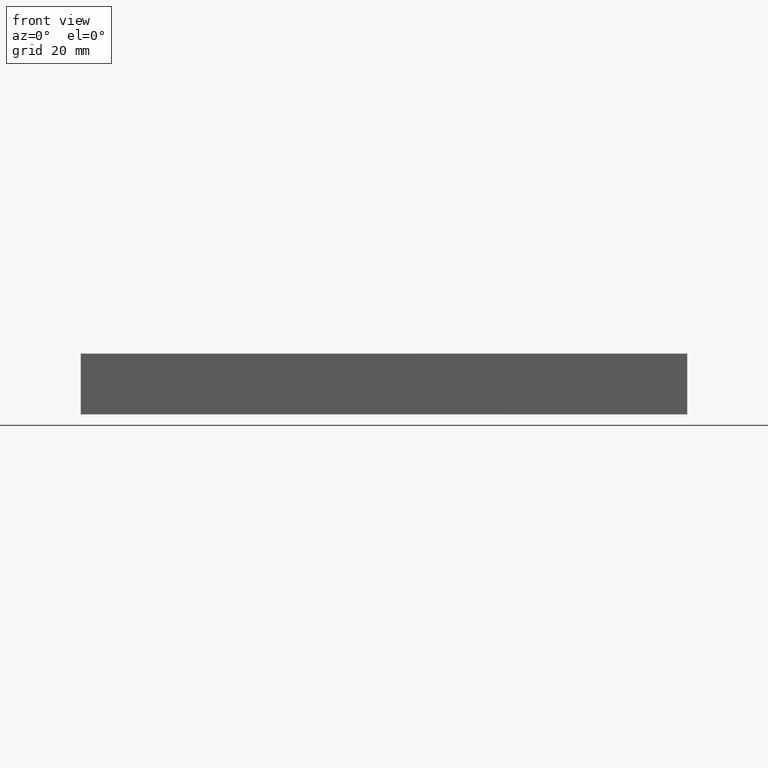
[diagram: clean part render]
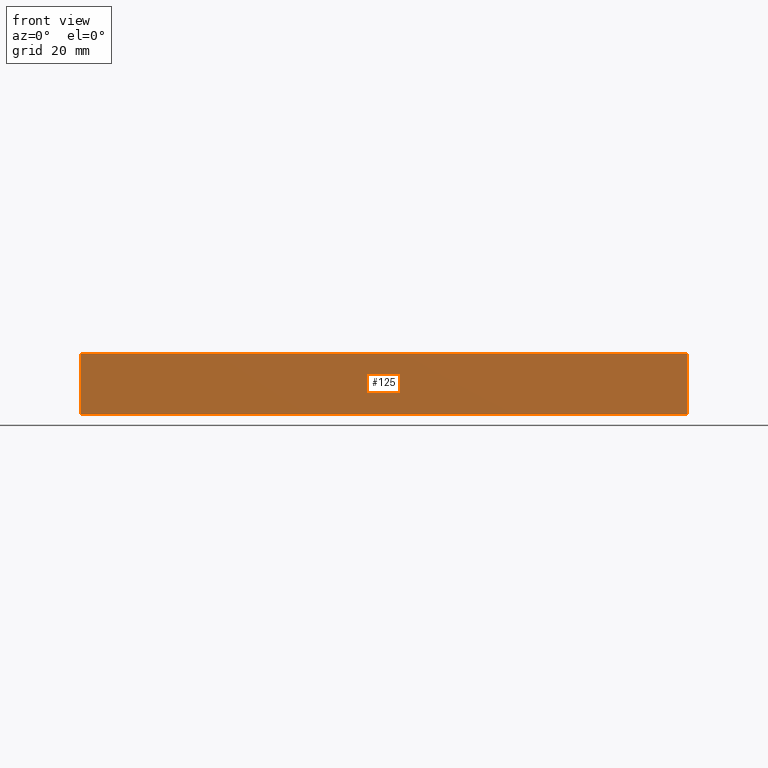
[diagram: same view with one face highlighted and labeled with its STEP entity id]
A machine part, front view. The second image highlights one B-rep face of the part: STEP entity #125.
In plain terms, the highlighted planar face has unit normal (0, 1, 0).
Its self-contained STEP definition (entity closure, byte-faithful):
#7=CARTESIAN_POINT('',(59.999986679760013,-39.999991119839706,12.0));
#8=VERTEX_POINT('',#7);
#9=CARTESIAN_POINT('',(59.999986679760013,-39.999991119839706,0.0));
#10=VERTEX_POINT('',#9);
#11=CARTESIAN_POINT('',(59.999986679760013,-39.999991119839706,12.0));
#12=DIRECTION('',(0.0,0.0,-1.0));
#13=VECTOR('',#12,12.0);
#14=LINE('',#11,#13);
#15=EDGE_CURVE('',#8,#10,#14,.T.);
#79=CARTESIAN_POINT('',(-59.999986679760013,-39.999991119839706,0.0));
#80=VERTEX_POINT('',#79);
#87=CARTESIAN_POINT('',(-59.999986679760013,-39.999991119839706,12.0));
#88=VERTEX_POINT('',#87);
#89=CARTESIAN_POINT('',(-59.999986679760013,-39.999991119839706,12.0));
#90=DIRECTION('',(0.0,0.0,-1.0));
#91=VECTOR('',#90,12.0);
#92=LINE('',#89,#91);
#93=EDGE_CURVE('',#88,#80,#92,.T.);
#104=CARTESIAN_POINT('',(-59.999986679760013,-39.999991119839706,12.0));
#105=DIRECTION('',(0.0,1.0,0.0));
#106=DIRECTION('',(1.0,0.0,0.0));
#107=AXIS2_PLACEMENT_3D('',#104,#105,#106);
#108=PLANE('',#107);
#109=ORIENTED_EDGE('',*,*,#93,.T.);
#110=CARTESIAN_POINT('',(-59.999986679760013,-39.999991119839706,0.0));
#111=DIRECTION('',(1.0,0.0,0.0));
#112=VECTOR('',#111,119.999973359520030);
#113=LINE('',#110,#112);
#114=EDGE_CURVE('',#80,#10,#113,.T.);
#115=ORIENTED_EDGE('',*,*,#114,.T.);
#116=ORIENTED_EDGE('',*,*,#15,.F.);
#117=CARTESIAN_POINT('',(-59.999986679760013,-39.999991119839706,12.0));
#118=DIRECTION('',(1.0,0.0,0.0));
#119=VECTOR('',#118,119.999973359520030);
#120=LINE('',#117,#119);
#121=EDGE_CURVE('',#88,#8,#120,.T.);
#122=ORIENTED_EDGE('',*,*,#121,.F.);
#123=EDGE_LOOP('',(#109,#115,#116,#122));
#124=FACE_OUTER_BOUND('',#123,.T.);
#125=ADVANCED_FACE('',(#124),#108,.F.);